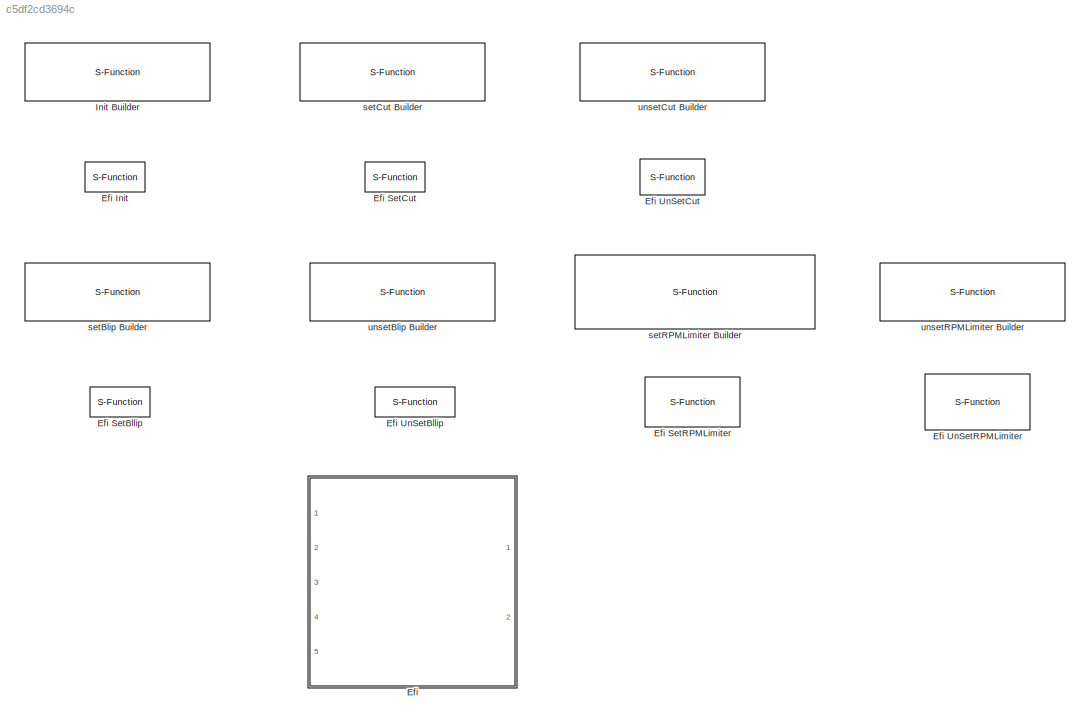
MODEL slx_c5df2cd3694c
KIND library
CONFIG AbsTol = auto
CONFIG EnableMultiTasking = off
CONFIG FixedStep = auto
CONFIG MaxStep = auto
CONFIG MinStep = auto
CONFIG RelTol = 1e-3
CONFIG SampleTimeConstraint = Unconstrained
CONFIG Solver = VariableStepAuto
CONFIG SolverName = VariableStepAuto
CONFIG StartTime = 0.0
CONFIG StopTime = 10.0
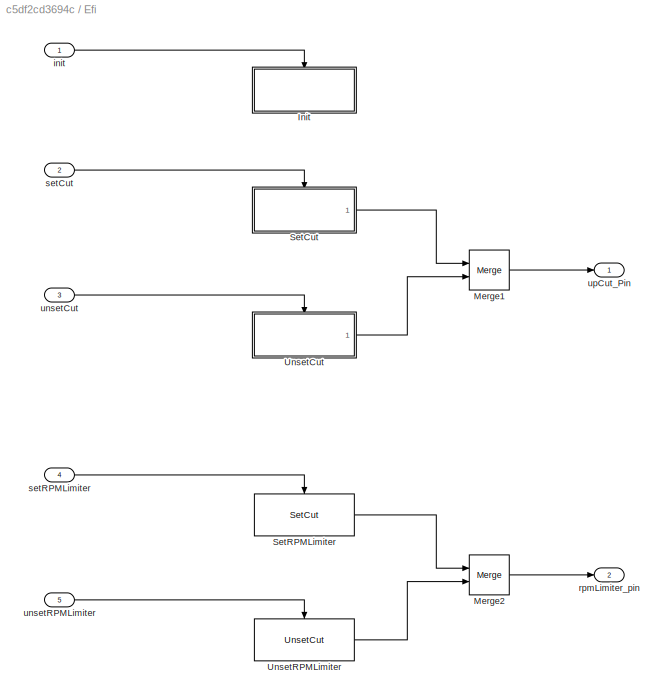
BLOCK [SubSystem] Efi
  Permissions = NoReadOrWrite
  Ports = [5, 2]
  RequestExecContextInheritance = off
BLOCK [S-Function] Efi Init
  EnableBusSupport = off
  FunctionName = Efi_init
  Ports = []
  SFcnIsStateOwnerBlock = off
  SFunctionDeploymentMode = off
BLOCK [S-Function] Efi SetBllip
  EnableBusSupport = off
  FunctionName = Efi_setBlip
  Ports = [0, 1]
  SFcnIsStateOwnerBlock = off
  SFunctionDeploymentMode = off
BLOCK [S-Function] Efi SetCut
  EnableBusSupport = off
  FunctionName = Efi_setCut
  Ports = [0, 1]
  SFcnIsStateOwnerBlock = off
  SFunctionDeploymentMode = off
BLOCK [S-Function] Efi SetRPMLimiter
  EnableBusSupport = off
  FunctionName = Efi_setRPMLimiter
  Ports = [0, 1]
  SFcnIsStateOwnerBlock = off
  SFunctionDeploymentMode = off
BLOCK [S-Function] Efi UnSetBllip
  EnableBusSupport = off
  FunctionName = Efi_unsetBlip
  Ports = [0, 1]
  SFcnIsStateOwnerBlock = off
  SFunctionDeploymentMode = off
BLOCK [S-Function] Efi UnSetCut
  EnableBusSupport = off
  FunctionName = Efi_unsetCut
  Ports = [0, 1]
  SFcnIsStateOwnerBlock = off
  SFunctionDeploymentMode = off
BLOCK [S-Function] Efi UnSetRPMLimiter
  EnableBusSupport = off
  FunctionName = Efi_unsetRPMLimiter
  Ports = [0, 1]
  SFcnIsStateOwnerBlock = off
  SFunctionDeploymentMode = off
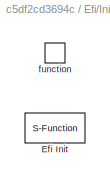
BLOCK [SubSystem] Efi/Init
  Ports = [0, 0, 0, 1]
  RequestExecContextInheritance = off
  TreatAsAtomicUnit = on
BLOCK [S-Function] Efi/Init/Efi Init
  EnableBusSupport = off
  FunctionName = Efi_init
  Ports = []
  SFcnIsStateOwnerBlock = off
  SFunctionDeploymentMode = off
BLOCK [TriggerPort] Efi/Init/function
  Ports = []
  StatesWhenEnabling = held
  TriggerType = function-call
  VariantControl = Variant
BLOCK [Merge] Efi/Merge1
  Ports = [2, 1]
BLOCK [Merge] Efi/Merge2
  Ports = [2, 1]
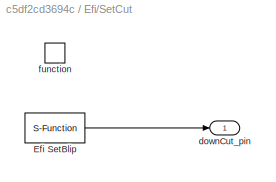
BLOCK [SubSystem] Efi/SetCut
  Ports = [0, 1, 0, 1]
  RequestExecContextInheritance = off
  TreatAsAtomicUnit = on
BLOCK [S-Function] Efi/SetCut/Efi SetBlip
  EnableBusSupport = off
  FunctionName = Efi_setBlip
  Ports = [0, 1]
  SFcnIsStateOwnerBlock = off
  SFunctionDeploymentMode = off
BLOCK [Outport] Efi/SetCut/downCut_pin
  IconDisplay = Port number
BLOCK [TriggerPort] Efi/SetCut/function
  Ports = []
  StatesWhenEnabling = held
  TriggerType = function-call
  VariantControl = Variant
BLOCK [Reference] Efi/SetRPMLimiter  REF=$bdroot/Efi/SetCut
  Ports = [0, 1, 0, 1]
  SourceBlock = $bdroot/Efi/SetCut
  SourceType = SubSystem
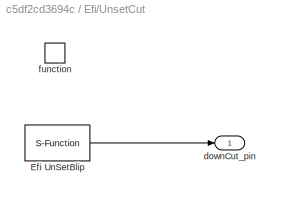
BLOCK [SubSystem] Efi/UnsetCut
  Ports = [0, 1, 0, 1]
  RequestExecContextInheritance = off
  TreatAsAtomicUnit = on
BLOCK [S-Function] Efi/UnsetCut/Efi UnSetBlip
  EnableBusSupport = off
  FunctionName = Efi_unsetBlip
  Ports = [0, 1]
  SFcnIsStateOwnerBlock = off
  SFunctionDeploymentMode = off
BLOCK [Outport] Efi/UnsetCut/downCut_pin
  IconDisplay = Port number
BLOCK [TriggerPort] Efi/UnsetCut/function
  Ports = []
  StatesWhenEnabling = held
  TriggerType = function-call
  VariantControl = Variant
BLOCK [Reference] Efi/UnsetRPMLimiter  REF=$bdroot/Efi/UnsetCut
  Ports = [0, 1, 0, 1]
  SourceBlock = $bdroot/Efi/UnsetCut
  SourceType = SubSystem
BLOCK [Inport] Efi/init
  IconDisplay = Port number
BLOCK [Outport] Efi/rpmLimiter_pin
  IconDisplay = Port number
  Port = 2
BLOCK [Inport] Efi/setCut
  IconDisplay = Port number
  Port = 2
BLOCK [Inport] Efi/setRPMLimiter
  IconDisplay = Port number
  Port = 4
BLOCK [Inport] Efi/unsetCut
  IconDisplay = Port number
  Port = 3
BLOCK [Inport] Efi/unsetRPMLimiter
  IconDisplay = Port number
  Port = 5
BLOCK [Outport] Efi/upCut_Pin
  IconDisplay = Port number
BLOCK [S-Function] Init Builder
  CopyFcn = set_param(gcbh,'LinkStatus','none')
  EnableBusSupport = off
  FunctionName = Efi_init
  InitFcn = try, set_param(gcb,'FunctionName','Efi_init'), end
  OpenFcn = sfunctionwizard(gcbh)
  Ports = []
  PreSaveFcn = try, set_param(gcb,'FunctionName','Efi_init'), end
  SFcnIsStateOwnerBlock = off
  SFunctionDeploymentMode = off
  SFunctionModules = Efi_init_wrapper
BLOCK [S-Function] setBlip Builder
  CopyFcn = set_param(gcbh,'LinkStatus','none')
  EnableBusSupport = off
  FunctionName = Efi_setBlip
  InitFcn = try, set_param(gcb,'FunctionName','Efi_setBlip'), end
  OpenFcn = sfunctionwizard(gcbh)
  Ports = [0, 1]
  PreSaveFcn = try, set_param(gcb,'FunctionName','Efi_setBlip'), end
  SFcnIsStateOwnerBlock = off
  SFunctionDeploymentMode = off
  SFunctionModules = Efi_setBlip_wrapper
BLOCK [S-Function] setCut Builder
  CopyFcn = set_param(gcbh,'LinkStatus','none')
  EnableBusSupport = off
  FunctionName = Efi_setCut
  InitFcn = try, set_param(gcb,'FunctionName','Efi_setCut'), end
  OpenFcn = sfunctionwizard(gcbh)
  Ports = [0, 1]
  PreSaveFcn = try, set_param(gcb,'FunctionName','Efi_setCut'), end
  SFcnIsStateOwnerBlock = off
  SFunctionDeploymentMode = off
  SFunctionModules = Efi_setCut_wrapper
BLOCK [S-Function] setRPMLimiter Builder
  CopyFcn = set_param(gcbh,'LinkStatus','none')
  EnableBusSupport = off
  FunctionName = Efi_setRPMLimiter
  InitFcn = try, set_param(gcb,'FunctionName','Efi_setRPMLimiter'), end
  OpenFcn = sfunctionwizard(gcbh)
  Ports = [0, 1]
  PreSaveFcn = try, set_param(gcb,'FunctionName','Efi_setRPMLimiter'), end
  SFcnIsStateOwnerBlock = off
  SFunctionDeploymentMode = off
  SFunctionModules = Efi_setRPMLimiter_wrapper
BLOCK [S-Function] unsetBlip Builder
  CopyFcn = set_param(gcbh,'LinkStatus','none')
  EnableBusSupport = off
  FunctionName = Efi_unsetBlip
  InitFcn = try, set_param(gcb,'FunctionName','Efi_unsetBlip'), end
  OpenFcn = sfunctionwizard(gcbh)
  Ports = [0, 1]
  PreSaveFcn = try, set_param(gcb,'FunctionName','Efi_unsetBlip'), end
  SFcnIsStateOwnerBlock = off
  SFunctionDeploymentMode = off
  SFunctionModules = Efi_unsetBlip_wrapper
BLOCK [S-Function] unsetCut Builder
  CopyFcn = set_param(gcbh,'LinkStatus','none')
  EnableBusSupport = off
  FunctionName = Efi_unsetCut
  InitFcn = try, set_param(gcb,'FunctionName','Efi_unsetCut'), end
  OpenFcn = sfunctionwizard(gcbh)
  Ports = [0, 1]
  PreSaveFcn = try, set_param(gcb,'FunctionName','Efi_unsetCut'), end
  SFcnIsStateOwnerBlock = off
  SFunctionDeploymentMode = off
  SFunctionModules = Efi_unsetCut_wrapper
BLOCK [S-Function] unsetRPMLimiter Builder
  CopyFcn = set_param(gcbh,'LinkStatus','none')
  EnableBusSupport = off
  FunctionName = Efi_unsetRPMLimiter
  InitFcn = try, set_param(gcb,'FunctionName','Efi_unsetRPMLimiter'), end
  OpenFcn = sfunctionwizard(gcbh)
  Ports = [0, 1]
  PreSaveFcn = try, set_param(gcb,'FunctionName','Efi_unsetRPMLimiter'), end
  SFcnIsStateOwnerBlock = off
  SFunctionDeploymentMode = off
  SFunctionModules = Efi_unsetRPMLimiter_wrapper
LINE Efi/Merge1:1 -> Efi/upCut_Pin:1
LINE Efi/Merge2:1 -> Efi/rpmLimiter_pin:1
LINE Efi/SetCut/Efi SetBlip:1 -> Efi/SetCut/downCut_pin:1
LINE Efi/SetCut:1 -> Efi/Merge1:1
LINE Efi/SetRPMLimiter:1 -> Efi/Merge2:1
LINE Efi/UnsetCut/Efi UnSetBlip:1 -> Efi/UnsetCut/downCut_pin:1
LINE Efi/UnsetCut:1 -> Efi/Merge1:2
LINE Efi/UnsetRPMLimiter:1 -> Efi/Merge2:2
LINE Efi/init:1 -> Efi/Init:trigger
LINE Efi/setCut:1 -> Efi/SetCut:trigger
LINE Efi/setRPMLimiter:1 -> Efi/SetRPMLimiter:trigger
LINE Efi/unsetCut:1 -> Efi/UnsetCut:trigger
LINE Efi/unsetRPMLimiter:1 -> Efi/UnsetRPMLimiter:trigger
